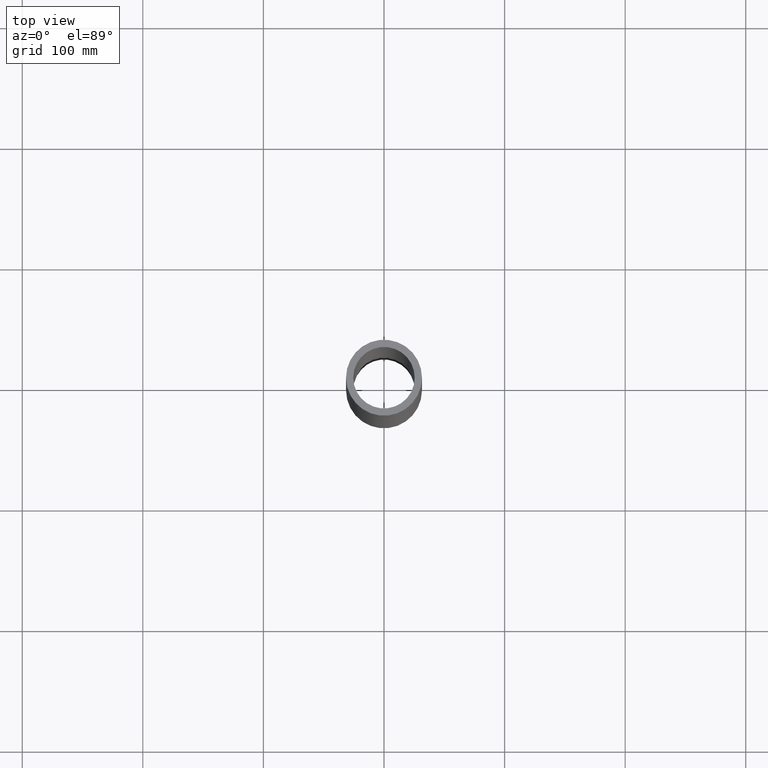
[diagram: clean part render]
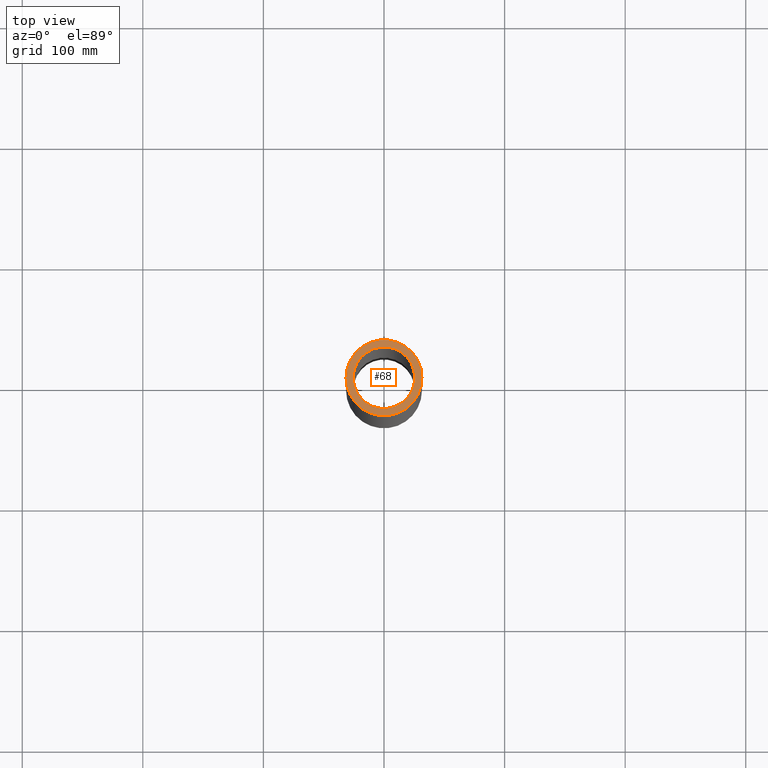
[diagram: same view with one face highlighted and labeled with its STEP entity id]
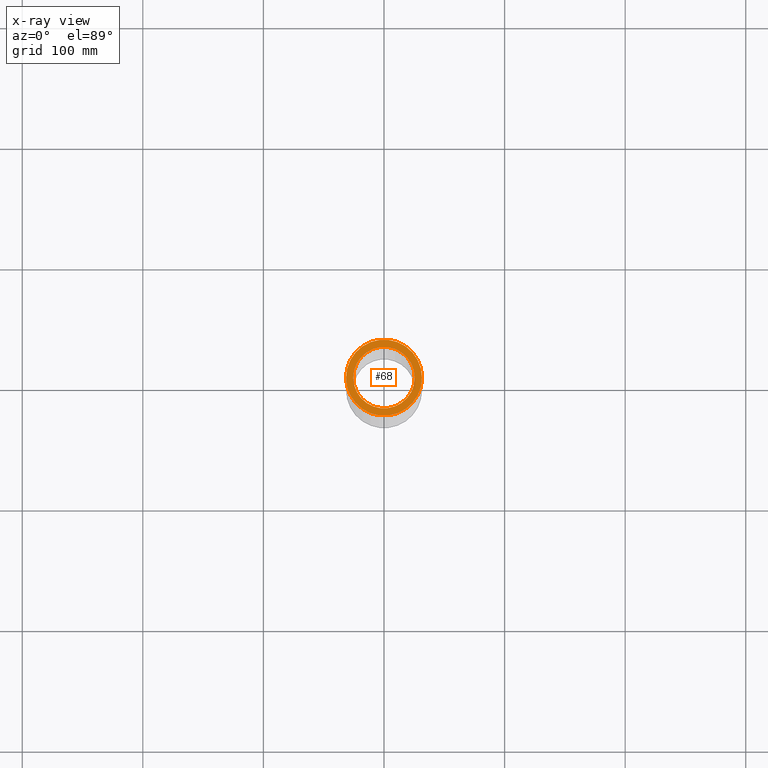
[diagram: x-ray of the same camera — body ghosted, the highlighted face saturated]
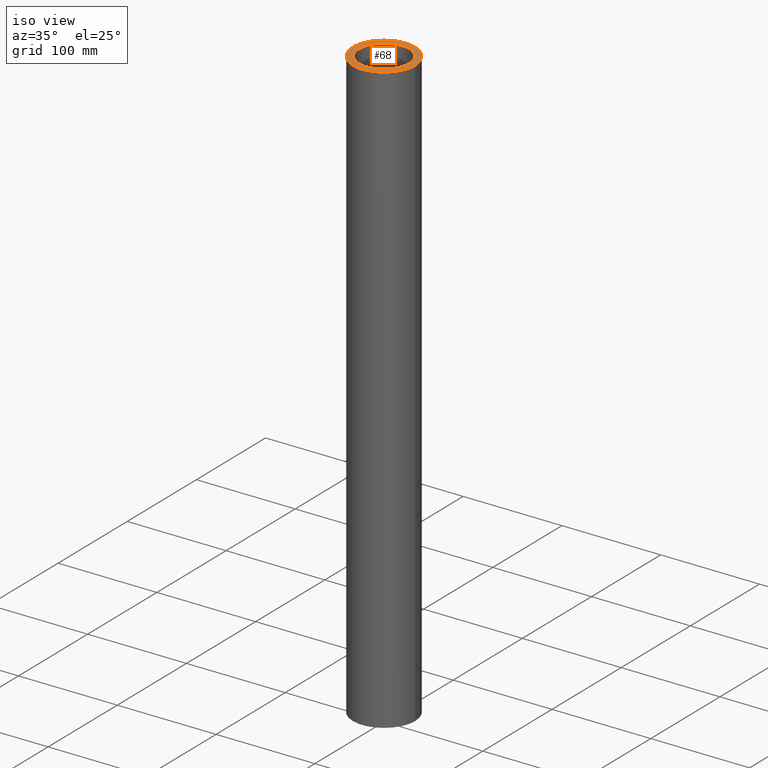
[diagram: same view with one face highlighted and labeled with its STEP entity id]
A machine part, top view. The second image highlights one B-rep face of the part: STEP entity #68.
The next image is the same camera in x-ray: the body ghosted, the highlighted face saturated — about 0% of this face is hidden behind the body in this view.
A second angle (iso view) of the same face is appended — the face is thin or edge-on in the first view.
In plain terms, the highlighted planar face has unit normal (0, 0, 1).
Its self-contained STEP definition (entity closure, byte-faithful):
#15=FACE_BOUND('',#27,.T.);
#17=PLANE('',#96);
#21=FACE_OUTER_BOUND('',#26,.T.);
#26=EDGE_LOOP('',(#56));
#27=EDGE_LOOP('',(#57));
#33=CIRCLE('',#91,25.5);
#35=CIRCLE('',#95,31.5);
#37=VERTEX_POINT('',#121);
#39=VERTEX_POINT('',#128);
#42=EDGE_CURVE('',#37,#37,#33,.T.);
#44=EDGE_CURVE('',#39,#39,#35,.T.);
#56=ORIENTED_EDGE('',*,*,#44,.T.);
#57=ORIENTED_EDGE('',*,*,#42,.T.);
#68=ADVANCED_FACE('',(#21,#15),#17,.T.);
#91=AXIS2_PLACEMENT_3D('',#123,#104,#105);
#95=AXIS2_PLACEMENT_3D('',#129,#112,#113);
#96=AXIS2_PLACEMENT_3D('',#131,#115,#116);
#104=DIRECTION('center_axis',(0.,0.,-1.));
#105=DIRECTION('ref_axis',(-1.,0.,0.));
#112=DIRECTION('center_axis',(0.,0.,1.));
#113=DIRECTION('ref_axis',(-1.,0.,0.));
#115=DIRECTION('center_axis',(0.,0.,1.));
#116=DIRECTION('ref_axis',(1.,0.,0.));
#121=CARTESIAN_POINT('',(25.5,3.12284933782575E-15,300.));
#123=CARTESIAN_POINT('Origin',(0.,0.,300.));
#128=CARTESIAN_POINT('',(31.5,3.85763741731416E-15,300.));
#129=CARTESIAN_POINT('Origin',(0.,0.,300.));
#131=CARTESIAN_POINT('Origin',(-3.14108381557023E-15,-4.69935671799008E-16,
300.));